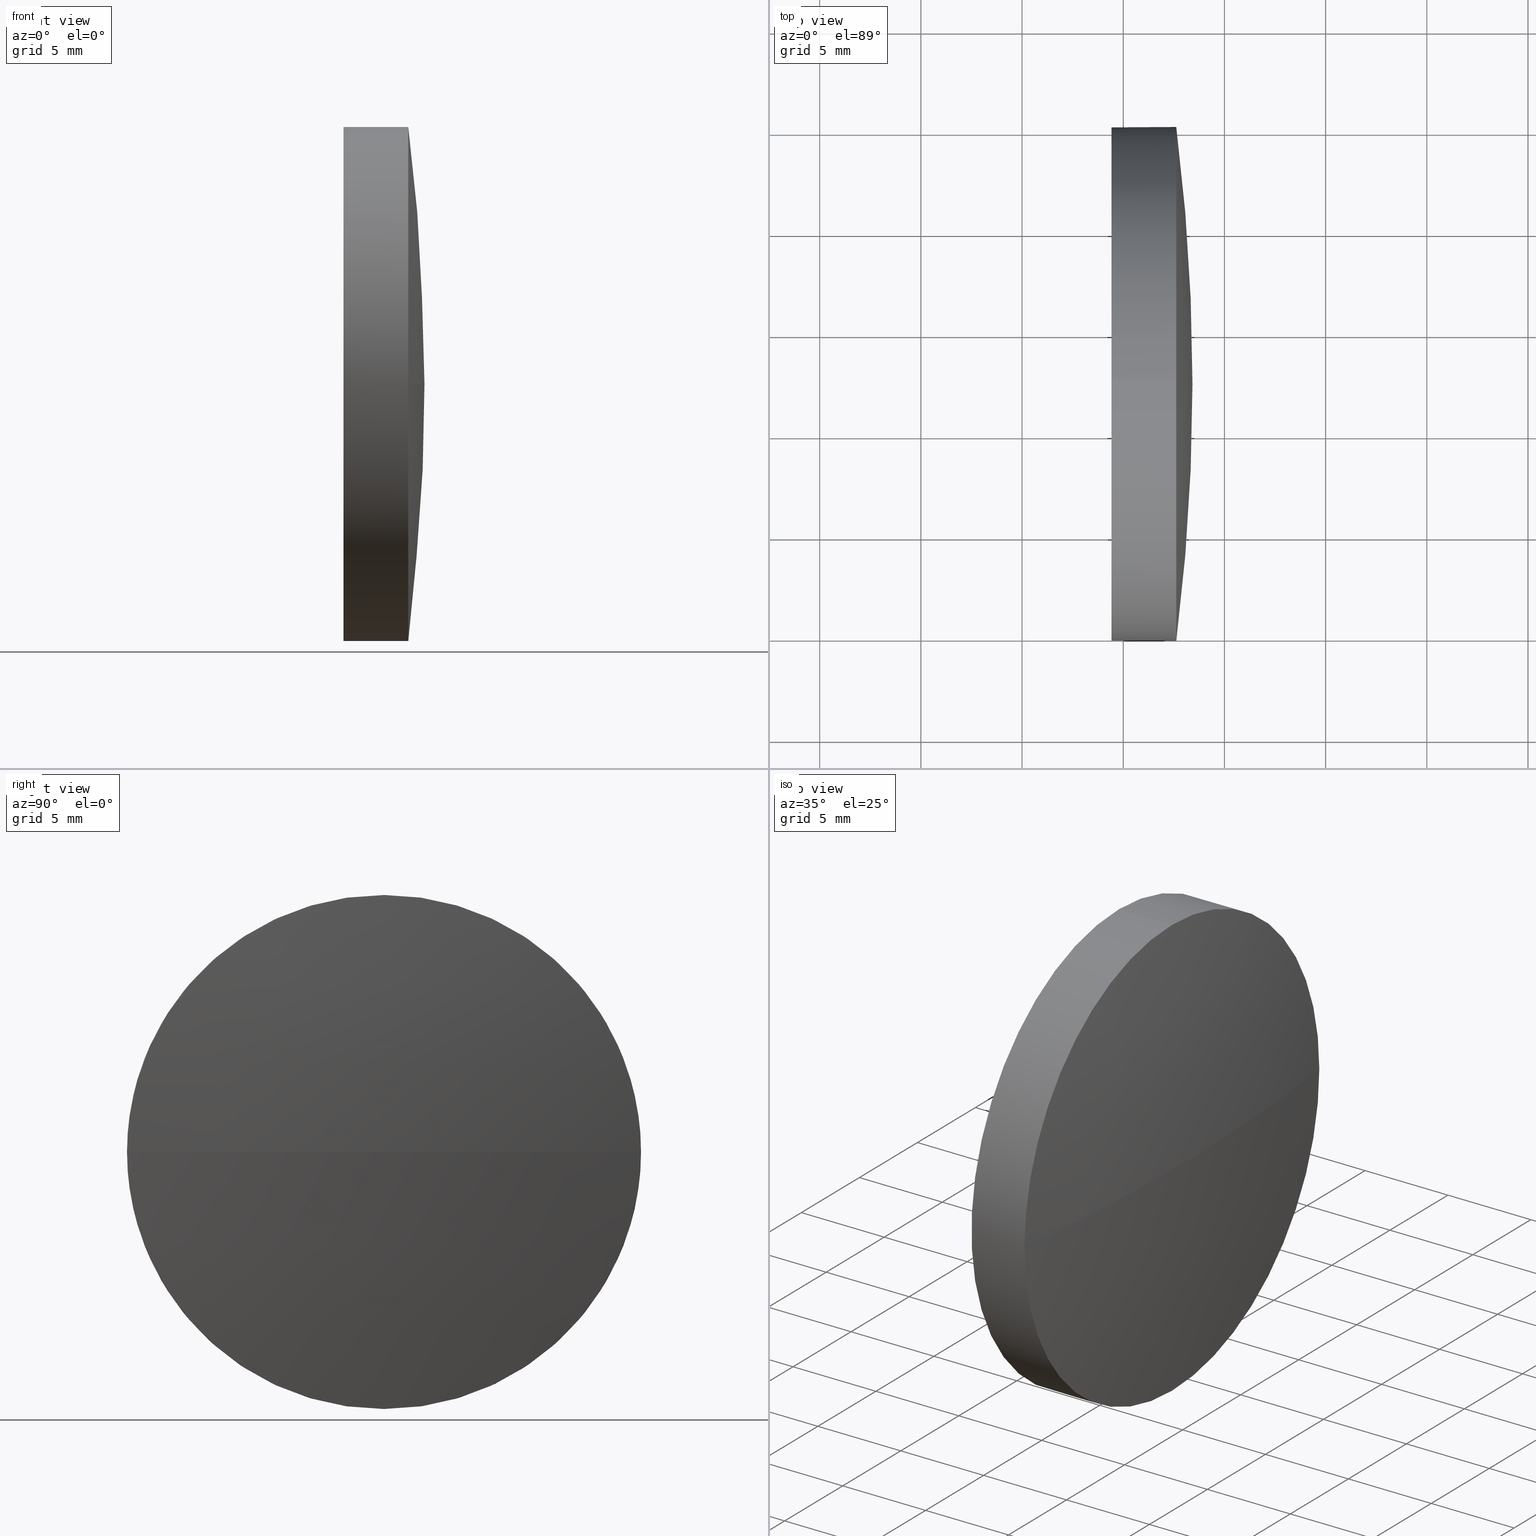
[diagram: canonical four-view strip — front | top / right | iso, engineering-drawing reading convention]
A machine part, canonical four-view strip (front | top / right | iso — engineering-drawing reading convention). The complete STEP part file that produces these views, byte-faithful:
ISO-10303-21;
HEADER;
FILE_DESCRIPTION (( 'STEP AP214' ),
    '1' );
FILE_NAME ('100470.STEP',
    '2019-06-11T03:23:28',
    ( '' ),
    ( '' ),
    'SwSTEP 2.0',
    'SolidWorks 2016',
    '' );
FILE_SCHEMA (( 'AUTOMOTIVE_DESIGN' ));
ENDSEC;

DATA;
#1 = EDGE_CURVE ( 'NONE', #29, #127, #64, .T. ) ;
#2 = ORIENTED_EDGE ( 'NONE', *, *, #34, .T. ) ;
#3 = AXIS2_PLACEMENT_3D ( 'NONE', #174, #156, #100 ) ;
#4 = CARTESIAN_POINT ( 'NONE',  ( 382.2142390152484900, 287.4786788978058200, 0.0000000000000000000 ) ) ;
#5 = CARTESIAN_POINT ( 'NONE',  ( 482.6204890152488900, 287.4786788978059300, 0.0000000000000000000 ) ) ;
#6 = CARTESIAN_POINT ( 'NONE',  ( 382.2142390152484900, 287.4786788978058200, 0.0000000000000000000 ) ) ;
#7 = PRESENTATION_STYLE_ASSIGNMENT (( #102 ) ) ;
#8 = CIRCLE ( 'NONE', #54, 12.70000000000004500 ) ;
#9 = ADVANCED_FACE ( 'NONE', ( #147 ), #43, .T. ) ;
#10 = EDGE_CURVE ( 'NONE', #18, #159, #50, .T. ) ;
#11 = AXIS2_PLACEMENT_3D ( 'NONE', #135, #122, #107 ) ;
#12 = ORIENTED_EDGE ( 'NONE', *, *, #1, .T. ) ;
#13 = EDGE_LOOP ( 'NONE', ( #172, #117, #160, #168, #35 ) ) ;
#14 = DIRECTION ( 'NONE',  ( 0.0000000000000000000, 1.000000000000000000, 1.224646799147353200E-016 ) ) ;
#15 = PLANE ( 'NONE',  #165 ) ;
#16 = DIRECTION ( 'NONE',  ( 1.000000000000000000, 0.0000000000000000000, 0.0000000000000000000 ) ) ;
#17 = EDGE_CURVE ( 'NONE', #159, #138, #8, .T. ) ;
#18 = VERTEX_POINT ( 'NONE', #98 ) ;
#19 = DIRECTION ( 'NONE',  ( -1.000000000000000000, -0.0000000000000000000, -0.0000000000000000000 ) ) ;
#20 = DIRECTION ( 'NONE',  ( -1.000000000000000000, -0.0000000000000000000, -0.0000000000000000000 ) ) ;
#21 = PRESENTATION_STYLE_ASSIGNMENT (( #23 ) ) ;
#22 = FILL_AREA_STYLE_COLOUR ( '', #124 ) ;
#23 = SURFACE_STYLE_USAGE ( .BOTH. , #38 ) ;
#24 =( GEOMETRIC_REPRESENTATION_CONTEXT ( 3 ) GLOBAL_UNCERTAINTY_ASSIGNED_CONTEXT ( ( #170 ) ) GLOBAL_UNIT_ASSIGNED_CONTEXT ( ( #166, #121, #94 ) ) REPRESENTATION_CONTEXT ( 'NONE', 'WORKASPACE' ) );
#25 = APPLICATION_CONTEXT ( 'automotive_design' ) ;
#26 = UNCERTAINTY_MEASURE_WITH_UNIT (LENGTH_MEASURE( 1.000000000000000100E-005 ), #132, 'distance_accuracy_value', 'NONE');
#27 = DIRECTION ( 'NONE',  ( 0.0000000000000000000, 0.0000000000000000000, 1.000000000000000000 ) ) ;
#28 = ADVANCED_FACE ( 'NONE', ( #185 ), #15, .F. ) ;
#29 = VERTEX_POINT ( 'NONE', #36 ) ;
#30 =( LENGTH_UNIT ( ) NAMED_UNIT ( * ) SI_UNIT ( .MILLI., .METRE. ) );
#31 = LINE ( 'NONE', #67, #126 ) ;
#32 = CYLINDRICAL_SURFACE ( 'NONE', #51, 12.70000000000004500 ) ;
#33 = ORIENTED_EDGE ( 'NONE', *, *, #17, .F. ) ;
#34 = EDGE_CURVE ( 'NONE', #29, #159, #97, .T. ) ;
#35 = ORIENTED_EDGE ( 'NONE', *, *, #39, .F. ) ;
#36 = CARTESIAN_POINT ( 'NONE',  ( 483.4204890152489000, 287.4786788978058200, 0.0000000000000000000 ) ) ;
#37 = CARTESIAN_POINT ( 'NONE',  ( 482.6204890152488900, 300.1786788978060400, 0.0000000000000000000 ) ) ;
#38 = SURFACE_SIDE_STYLE ('',( #108 ) ) ;
#39 = EDGE_CURVE ( 'NONE', #59, #55, #77, .T. ) ;
#40 = PRODUCT_CONTEXT ( 'NONE', #139, 'mechanical' ) ;
#41 = EDGE_LOOP ( 'NONE', ( #140, #56 ) ) ;
#42 = AXIS2_PLACEMENT_3D ( 'NONE', #178, #19, #116 ) ;
#43 = SPHERICAL_SURFACE ( 'NONE', #3, 101.2062500000004400 ) ;
#44 = ORIENTED_EDGE ( 'NONE', *, *, #81, .T. ) ;
#45 = DIRECTION ( 'NONE',  ( 0.0000000000000000000, 0.0000000000000000000, 1.000000000000000000 ) ) ;
#46 = AXIS2_PLACEMENT_3D ( 'NONE', #91, #133, #52 ) ;
#47 =( NAMED_UNIT ( * ) PLANE_ANGLE_UNIT ( ) SI_UNIT ( $, .RADIAN. ) );
#48 = CARTESIAN_POINT ( 'NONE',  ( 479.4204890152489000, 287.4786788978059300, 0.0000000000000000000 ) ) ;
#49 = SURFACE_STYLE_FILL_AREA ( #118 ) ;
#50 = CIRCLE ( 'NONE', #60, 12.70000000000004500 ) ;
#51 = AXIS2_PLACEMENT_3D ( 'NONE', #76, #179, #90 ) ;
#52 = DIRECTION ( 'NONE',  ( 0.0000000000000000000, 0.0000000000000000000, 1.000000000000000000 ) ) ;
#53 = FILL_AREA_STYLE_COLOUR ( '', #85 ) ;
#54 = AXIS2_PLACEMENT_3D ( 'NONE', #5, #101, #45 ) ;
#55 = VERTEX_POINT ( 'NONE', #175 ) ;
#56 = ORIENTED_EDGE ( 'NONE', *, *, #39, .T. ) ;
#57 = MANIFOLD_SOLID_BREP ( '��ת1', #84 ) ;
#58 = ORIENTED_EDGE ( 'NONE', *, *, #10, .T. ) ;
#59 = VERTEX_POINT ( 'NONE', #103 ) ;
#60 = AXIS2_PLACEMENT_3D ( 'NONE', #114, #113, #88 ) ;
#61 = SPHERICAL_SURFACE ( 'NONE', #74, 101.2062500000004400 ) ;
#62 = AXIS2_PLACEMENT_3D ( 'NONE', #93, #109, #27 ) ;
#63 = AXIS2_PLACEMENT_3D ( 'NONE', #48, #65, #119 ) ;
#64 = CIRCLE ( 'NONE', #155, 101.2062500000004400 ) ;
#65 = DIRECTION ( 'NONE',  ( -1.000000000000000000, -0.0000000000000000000, -0.0000000000000000000 ) ) ;
#66 = MECHANICAL_DESIGN_GEOMETRIC_PRESENTATION_REPRESENTATION (  '', ( #72 ), #131 ) ;
#67 = CARTESIAN_POINT ( 'NONE',  ( 473.6822709795725400, 287.4786788978059300, 12.70000000000004500 ) ) ;
#68 = EDGE_LOOP ( 'NONE', ( #99, #12, #83, #33 ) ) ;
#69 = CARTESIAN_POINT ( 'NONE',  ( 473.6822709795725400, 287.4786788978059300, -12.70000000000004500 ) ) ;
#70 = APPLICATION_PROTOCOL_DEFINITION ( 'draft international standard', 'automotive_design', 1998, #139 ) ;
#71 = PRODUCT_DEFINITION ( 'δ֪', '', #87, #164 ) ;
#72 = STYLED_ITEM ( 'NONE', ( #7 ), #57 ) ;
#73 = ORIENTED_EDGE ( 'NONE', *, *, #158, .F. ) ;
#74 = AXIS2_PLACEMENT_3D ( 'NONE', #181, #129, #145 ) ;
#75 = AXIS2_PLACEMENT_3D ( 'NONE', #6, #163, #89 ) ;
#76 = CARTESIAN_POINT ( 'NONE',  ( 473.6822709795725400, 287.4786788978059300, 0.0000000000000000000 ) ) ;
#77 = CIRCLE ( 'NONE', #63, 12.70000000000004500 ) ;
#78 = DIRECTION ( 'NONE',  ( -1.000000000000000000, -0.0000000000000000000, -0.0000000000000000000 ) ) ;
#79 = ADVANCED_BREP_SHAPE_REPRESENTATION ( '100470', ( #57, #11 ), #24 ) ;
#80 = PRODUCT ( '100470', '100470', '', ( #40 ) ) ;
#81 = EDGE_CURVE ( 'NONE', #138, #59, #173, .T. ) ;
#82 =( NAMED_UNIT ( * ) SI_UNIT ( $, .STERADIAN. ) SOLID_ANGLE_UNIT ( ) );
#83 = ORIENTED_EDGE ( 'NONE', *, *, #169, .F. ) ;
#84 = CLOSED_SHELL ( 'NONE', ( #136, #125, #9, #153, #28 ) ) ;
#85 = COLOUR_RGB ( '',1.000000000000000000, 1.000000000000000000, 1.000000000000000000 ) ;
#86 = ORIENTED_EDGE ( 'NONE', *, *, #10, .F. ) ;
#87 = PRODUCT_DEFINITION_FORMATION_WITH_SPECIFIED_SOURCE ( '�κ�', '', #80, .NOT_KNOWN. ) ;
#88 = DIRECTION ( 'NONE',  ( 0.0000000000000000000, 0.0000000000000000000, 1.000000000000000000 ) ) ;
#89 = DIRECTION ( 'NONE',  ( 1.000000000000000000, 0.0000000000000000000, 0.0000000000000000000 ) ) ;
#90 = DIRECTION ( 'NONE',  ( 0.0000000000000000000, 0.0000000000000000000, 1.000000000000000000 ) ) ;
#91 = CARTESIAN_POINT ( 'NONE',  ( 473.6822709795725400, 287.4786788978059300, 0.0000000000000000000 ) ) ;
#92 = VECTOR ( 'NONE', #78, 1000.000000000000000 ) ;
#93 = CARTESIAN_POINT ( 'NONE',  ( 479.4204890152489000, 287.4786788978059300, 0.0000000000000000000 ) ) ;
#94 =( NAMED_UNIT ( * ) SI_UNIT ( $, .STERADIAN. ) SOLID_ANGLE_UNIT ( ) );
#95 = ORIENTED_EDGE ( 'NONE', *, *, #111, .F. ) ;
#96 = CIRCLE ( 'NONE', #62, 12.70000000000004500 ) ;
#97 = CIRCLE ( 'NONE', #75, 101.2062500000004400 ) ;
#98 = CARTESIAN_POINT ( 'NONE',  ( 482.6204890152488900, 287.4786788978059300, 12.70000000000004500 ) ) ;
#99 = ORIENTED_EDGE ( 'NONE', *, *, #34, .F. ) ;
#100 = DIRECTION ( 'NONE',  ( 0.0000000000000000000, 1.000000000000000000, 0.0000000000000000000 ) ) ;
#101 = DIRECTION ( 'NONE',  ( -1.000000000000000000, -0.0000000000000000000, -0.0000000000000000000 ) ) ;
#102 = SURFACE_STYLE_USAGE ( .BOTH. , #176 ) ;
#103 = CARTESIAN_POINT ( 'NONE',  ( 479.4204890152489000, 287.4786788978059300, -12.70000000000004500 ) ) ;
#104 = FACE_OUTER_BOUND ( 'NONE', #180, .T. ) ;
#105 = CARTESIAN_POINT ( 'NONE',  ( 482.6204890152488900, 287.4786788978059300, -12.70000000000004500 ) ) ;
#106 = STYLED_ITEM ( 'NONE', ( #21 ), #79 ) ;
#107 = DIRECTION ( 'NONE',  ( 1.000000000000000000, 0.0000000000000000000, 0.0000000000000000000 ) ) ;
#108 = SURFACE_STYLE_FILL_AREA ( #167 ) ;
#109 = DIRECTION ( 'NONE',  ( -1.000000000000000000, -0.0000000000000000000, -0.0000000000000000000 ) ) ;
#110 = ORIENTED_EDGE ( 'NONE', *, *, #162, .F. ) ;
#111 = EDGE_CURVE ( 'NONE', #18, #55, #31, .T. ) ;
#112 = ORIENTED_EDGE ( 'NONE', *, *, #1, .F. ) ;
#113 = DIRECTION ( 'NONE',  ( -1.000000000000000000, -0.0000000000000000000, -0.0000000000000000000 ) ) ;
#114 = CARTESIAN_POINT ( 'NONE',  ( 482.6204890152488900, 287.4786788978059300, 0.0000000000000000000 ) ) ;
#115 =( GEOMETRIC_REPRESENTATION_CONTEXT ( 3 ) GLOBAL_UNCERTAINTY_ASSIGNED_CONTEXT ( ( #186 ) ) GLOBAL_UNIT_ASSIGNED_CONTEXT ( ( #30, #151, #82 ) ) REPRESENTATION_CONTEXT ( 'NONE', 'WORKASPACE' ) );
#116 = DIRECTION ( 'NONE',  ( 0.0000000000000000000, 0.0000000000000000000, 1.000000000000000000 ) ) ;
#117 = ORIENTED_EDGE ( 'NONE', *, *, #169, .T. ) ;
#118 = FILL_AREA_STYLE ('',( #53 ) ) ;
#119 = DIRECTION ( 'NONE',  ( 0.0000000000000000000, 0.0000000000000000000, 1.000000000000000000 ) ) ;
#120 = DIRECTION ( 'NONE',  ( -1.000000000000000000, -0.0000000000000000000, -0.0000000000000000000 ) ) ;
#121 =( NAMED_UNIT ( * ) PLANE_ANGLE_UNIT ( ) SI_UNIT ( $, .RADIAN. ) );
#122 = DIRECTION ( 'NONE',  ( 0.0000000000000000000, 0.0000000000000000000, 1.000000000000000000 ) ) ;
#123 = PRESENTATION_LAYER_ASSIGNMENT (  '', '', ( #72 ) ) ;
#124 = COLOUR_RGB ( '',1.000000000000000000, 1.000000000000000000, 1.000000000000000000 ) ;
#125 = ADVANCED_FACE ( 'NONE', ( #130 ), #61, .T. ) ;
#126 = VECTOR ( 'NONE', #20, 1000.000000000000000 ) ;
#127 = VERTEX_POINT ( 'NONE', #161 ) ;
#128 = DIRECTION ( 'NONE',  ( 0.0000000000000000000, 0.0000000000000000000, -1.000000000000000000 ) ) ;
#129 = DIRECTION ( 'NONE',  ( -0.0000000000000000000, 0.0000000000000000000, -1.000000000000000000 ) ) ;
#130 = FACE_OUTER_BOUND ( 'NONE', #68, .T. ) ;
#131 =( GEOMETRIC_REPRESENTATION_CONTEXT ( 3 ) GLOBAL_UNCERTAINTY_ASSIGNED_CONTEXT ( ( #26 ) ) GLOBAL_UNIT_ASSIGNED_CONTEXT ( ( #132, #47, #146 ) ) REPRESENTATION_CONTEXT ( 'NONE', 'WORKASPACE' ) );
#132 =( LENGTH_UNIT ( ) NAMED_UNIT ( * ) SI_UNIT ( .MILLI., .METRE. ) );
#133 = DIRECTION ( 'NONE',  ( -1.000000000000000000, -0.0000000000000000000, -0.0000000000000000000 ) ) ;
#134 = MECHANICAL_DESIGN_GEOMETRIC_PRESENTATION_REPRESENTATION (  '', ( #106 ), #115 ) ;
#135 = CARTESIAN_POINT ( 'NONE',  ( 0.0000000000000000000, 0.0000000000000000000, 0.0000000000000000000 ) ) ;
#136 = ADVANCED_FACE ( 'NONE', ( #104 ), #32, .T. ) ;
#137 = DIRECTION ( 'NONE',  ( 0.0000000000000000000, 0.0000000000000000000, 1.000000000000000000 ) ) ;
#138 = VERTEX_POINT ( 'NONE', #105 ) ;
#139 = APPLICATION_CONTEXT ( 'automotive_design' ) ;
#140 = ORIENTED_EDGE ( 'NONE', *, *, #162, .T. ) ;
#141 = SHAPE_DEFINITION_REPRESENTATION ( #149, #79 ) ;
#142 = PRESENTATION_LAYER_ASSIGNMENT (  '', '', ( #106 ) ) ;
#143 = DIRECTION ( 'NONE',  ( 0.0000000000000000000, 1.224646799147353200E-016, -1.000000000000000000 ) ) ;
#144 = PRODUCT_RELATED_PRODUCT_CATEGORY ( 'part', '', ( #80 ) ) ;
#145 = DIRECTION ( 'NONE',  ( 0.0000000000000000000, 1.000000000000000000, 0.0000000000000000000 ) ) ;
#146 =( NAMED_UNIT ( * ) SI_UNIT ( $, .STERADIAN. ) SOLID_ANGLE_UNIT ( ) );
#147 = FACE_OUTER_BOUND ( 'NONE', #177, .T. ) ;
#148 = CIRCLE ( 'NONE', #150, 12.70000000000004500 ) ;
#149 = PRODUCT_DEFINITION_SHAPE ( 'NONE', 'NONE',  #71 ) ;
#150 = AXIS2_PLACEMENT_3D ( 'NONE', #152, #120, #137 ) ;
#151 =( NAMED_UNIT ( * ) PLANE_ANGLE_UNIT ( ) SI_UNIT ( $, .RADIAN. ) );
#152 = CARTESIAN_POINT ( 'NONE',  ( 482.6204890152488900, 287.4786788978059300, 0.0000000000000000000 ) ) ;
#153 = ADVANCED_FACE ( 'NONE', ( #184 ), #171, .T. ) ;
#154 = ORIENTED_EDGE ( 'NONE', *, *, #17, .T. ) ;
#155 = AXIS2_PLACEMENT_3D ( 'NONE', #4, #143, #14 ) ;
#156 = DIRECTION ( 'NONE',  ( -0.0000000000000000000, 0.0000000000000000000, -1.000000000000000000 ) ) ;
#157 = CARTESIAN_POINT ( 'NONE',  ( 479.4204890152489000, 287.4786788978059300, 0.0000000000000000000 ) ) ;
#158 = EDGE_CURVE ( 'NONE', #127, #18, #182, .T. ) ;
#159 = VERTEX_POINT ( 'NONE', #37 ) ;
#160 = ORIENTED_EDGE ( 'NONE', *, *, #158, .T. ) ;
#161 = CARTESIAN_POINT ( 'NONE',  ( 482.6204890152488900, 274.7786788978057200, -1.555301434917146900E-015 ) ) ;
#162 = EDGE_CURVE ( 'NONE', #55, #59, #96, .T. ) ;
#163 = DIRECTION ( 'NONE',  ( -0.0000000000000000000, 0.0000000000000000000, 1.000000000000000000 ) ) ;
#164 = PRODUCT_DEFINITION_CONTEXT ( 'detailed design', #25, 'design' ) ;
#165 = AXIS2_PLACEMENT_3D ( 'NONE', #157, #16, #128 ) ;
#166 =( LENGTH_UNIT ( ) NAMED_UNIT ( * ) SI_UNIT ( .MILLI., .METRE. ) );
#167 = FILL_AREA_STYLE ('',( #22 ) ) ;
#168 = ORIENTED_EDGE ( 'NONE', *, *, #111, .T. ) ;
#169 = EDGE_CURVE ( 'NONE', #138, #127, #148, .T. ) ;
#170 = UNCERTAINTY_MEASURE_WITH_UNIT (LENGTH_MEASURE( 1.000000000000000100E-005 ), #166, 'distance_accuracy_value', 'NONE');
#171 = CYLINDRICAL_SURFACE ( 'NONE', #46, 12.70000000000004500 ) ;
#172 = ORIENTED_EDGE ( 'NONE', *, *, #81, .F. ) ;
#173 = LINE ( 'NONE', #69, #92 ) ;
#174 = CARTESIAN_POINT ( 'NONE',  ( 382.2142390152484900, 287.4786788978058200, 0.0000000000000000000 ) ) ;
#175 = CARTESIAN_POINT ( 'NONE',  ( 479.4204890152489000, 287.4786788978059300, 12.70000000000004500 ) ) ;
#176 = SURFACE_SIDE_STYLE ('',( #49 ) ) ;
#177 = EDGE_LOOP ( 'NONE', ( #112, #2, #86, #73 ) ) ;
#178 = CARTESIAN_POINT ( 'NONE',  ( 482.6204890152488900, 287.4786788978059300, 0.0000000000000000000 ) ) ;
#179 = DIRECTION ( 'NONE',  ( -1.000000000000000000, -0.0000000000000000000, -0.0000000000000000000 ) ) ;
#180 = EDGE_LOOP ( 'NONE', ( #154, #44, #110, #95, #58 ) ) ;
#181 = CARTESIAN_POINT ( 'NONE',  ( 382.2142390152484900, 287.4786788978058200, 0.0000000000000000000 ) ) ;
#182 = CIRCLE ( 'NONE', #42, 12.70000000000004500 ) ;
#183 = APPLICATION_PROTOCOL_DEFINITION ( 'draft international standard', 'automotive_design', 1998, #25 ) ;
#184 = FACE_OUTER_BOUND ( 'NONE', #13, .T. ) ;
#185 = FACE_OUTER_BOUND ( 'NONE', #41, .T. ) ;
#186 = UNCERTAINTY_MEASURE_WITH_UNIT (LENGTH_MEASURE( 1.000000000000000100E-005 ), #30, 'distance_accuracy_value', 'NONE');
ENDSEC;
END-ISO-10303-21;
